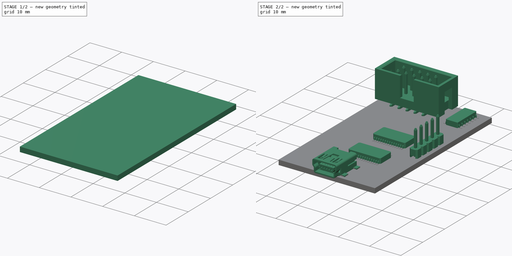
[diagram: build sequence overview — one tinted view per stage of 2, left to right]
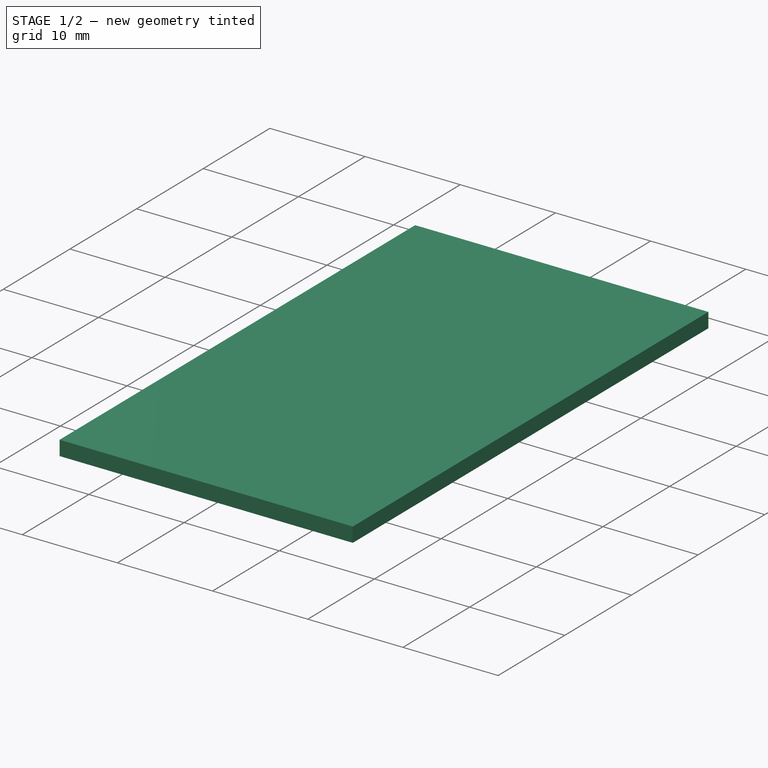
[diagram: stage 1 of 2 — iso view after this stage's code; geometry added in this stage tinted green]
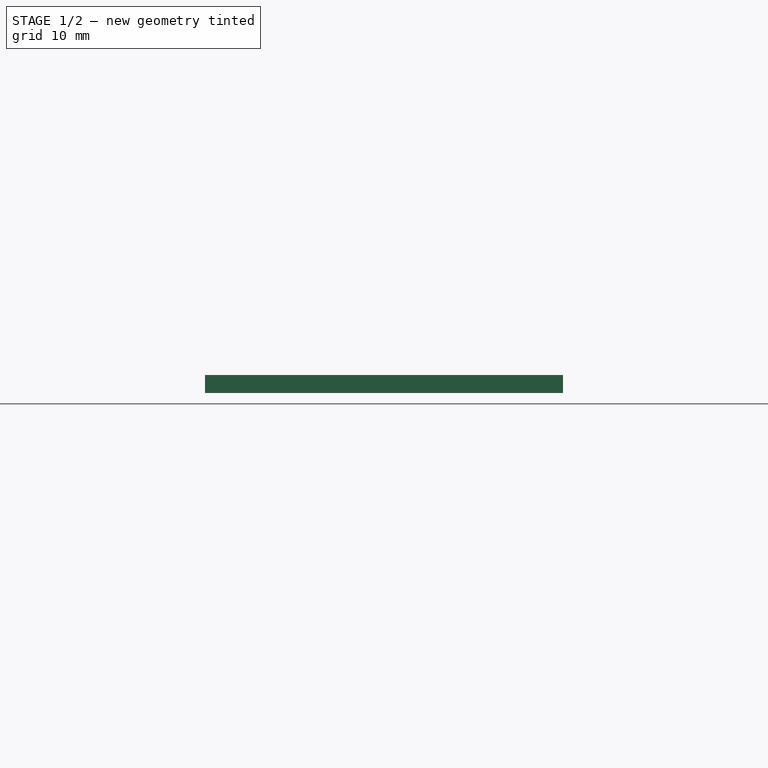
[diagram: stage 1 of 2 — front view after this stage's code; geometry added in this stage tinted green]
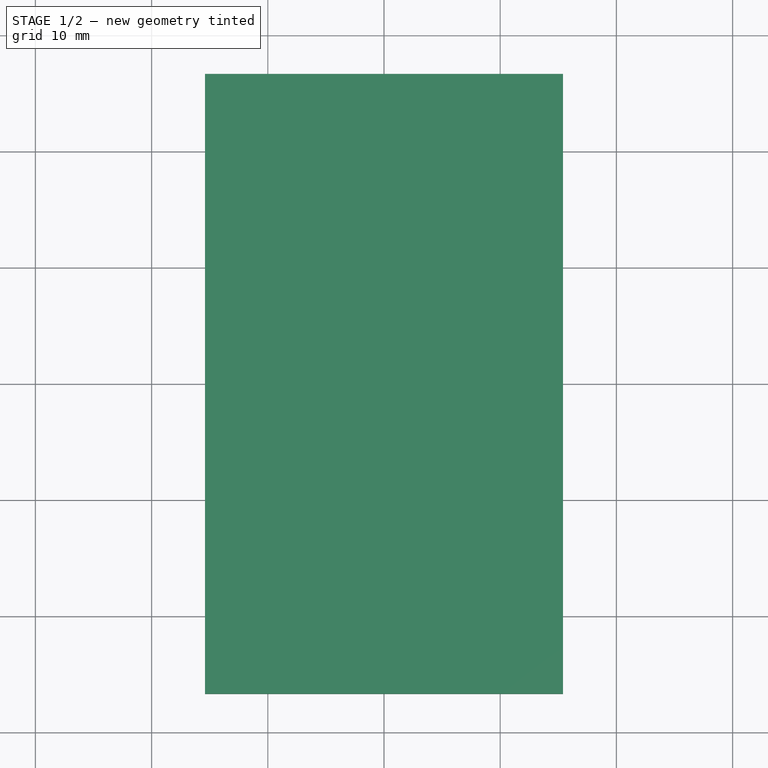
[diagram: stage 1 of 2 — top view after this stage's code; geometry added in this stage tinted green]
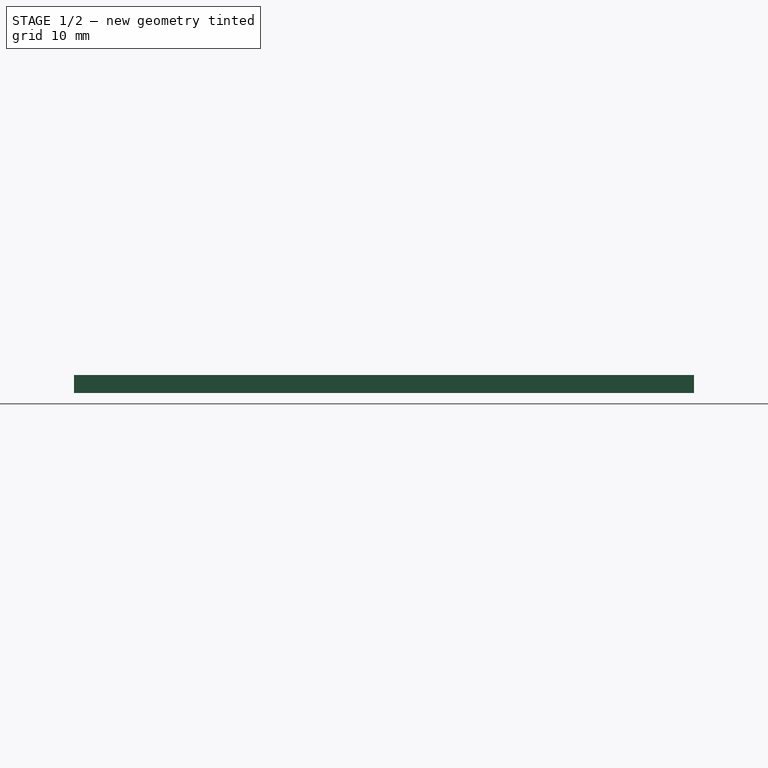
[diagram: stage 1 of 2 — right view after this stage's code; geometry added in this stage tinted green]
FCSTD DOCUMENT  (FreeCAD 0.16R5262 (Git))
Label: bus_pirate
License: CreativeCommons Attribution-ShareAlike
LicenseURL: http://creativecommons.org/licenses/by-sa/4.0/
objects: Part::Feature×7, Sketcher::SketchObject×1, PartDesign::Pad×1, Part::MultiFuse×1
note: 11 computed .brp shape members not serialized (recipe doc carries the construction recipe); baked Part::Feature solids carry a one-line shape summary decoded from their .brp

FEATURE [Sketcher::SketchObject] Sketch
  sketch-geometry (4):
    g0: LineSegment StartX=-15.4 StartY=26.675 StartZ=0 EndX=15.4 EndY=26.675 EndZ=0
    g1: LineSegment StartX=15.4 StartY=26.675 StartZ=0 EndX=15.4 EndY=-26.675 EndZ=0
    g2: LineSegment StartX=15.4 StartY=-26.675 StartZ=0 EndX=-15.4 EndY=-26.675 EndZ=0
    g3: LineSegment StartX=-15.4 StartY=-26.675 StartZ=0 EndX=-15.4 EndY=26.675 EndZ=0
  constraints (11):
    c: Coincident(g0,g1)
    c: Coincident(g1,g2)
    c: Coincident(g2,g3)
    c: Coincident(g3,g0)
    c: Horizontal(g0)
    c: Horizontal(g2)
    c: Vertical(g1)
    c: Vertical(g3)
    c: Symmetric(g0,g1,g-1)
    c: DistanceX(g0) = 30.8
    c: DistanceY(g1) = -53.35
FEATURE [PartDesign::Pad] Pad  label="board"
  Length = 1.55
  Length2 = 100
  Reversed = true
  Sketch = -> Sketch
  Type = 0
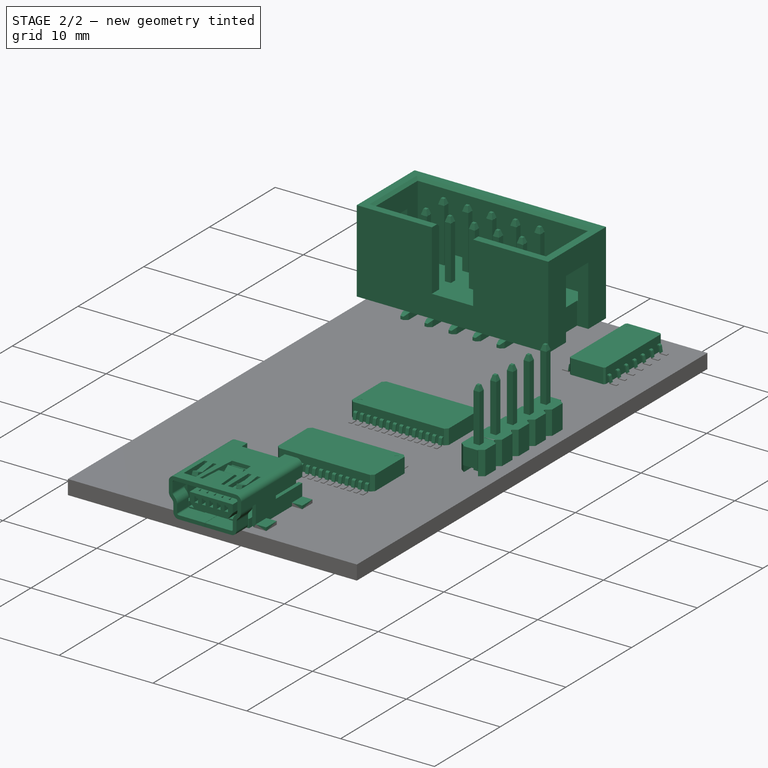
[diagram: stage 2 of 2 — iso view after this stage's code; geometry added in this stage tinted green]
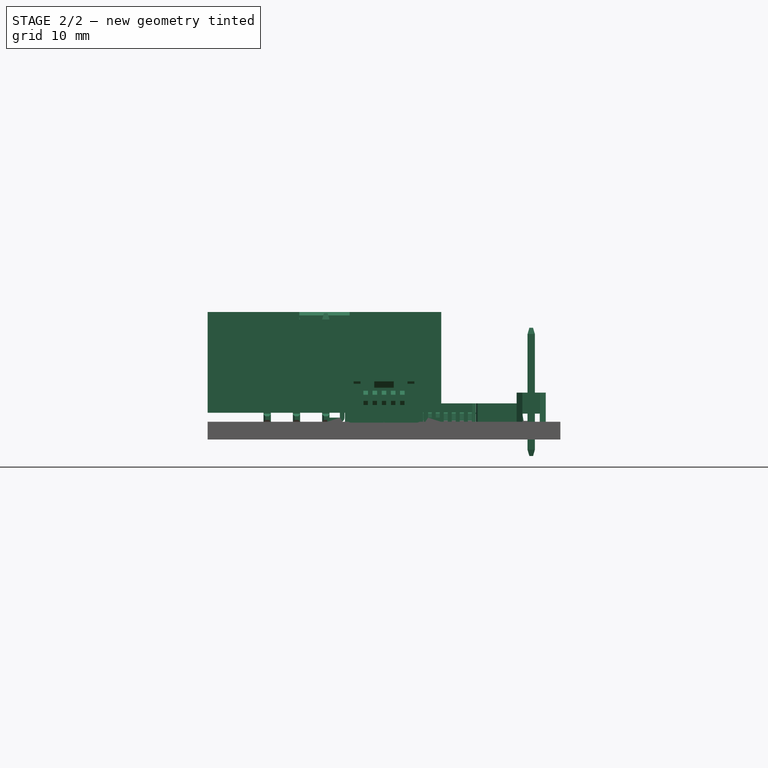
[diagram: stage 2 of 2 — front view after this stage's code; geometry added in this stage tinted green]
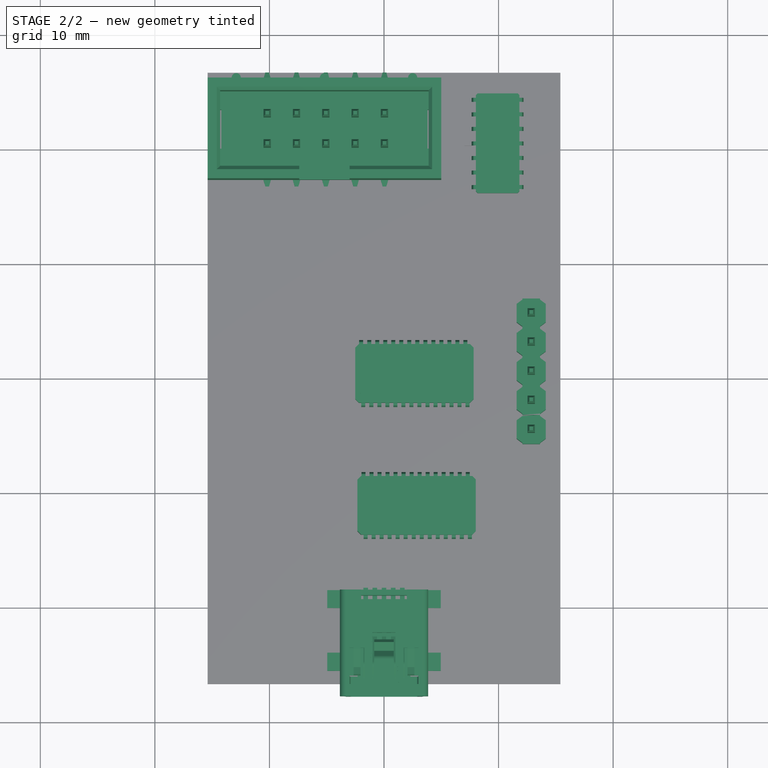
[diagram: stage 2 of 2 — top view after this stage's code; geometry added in this stage tinted green]
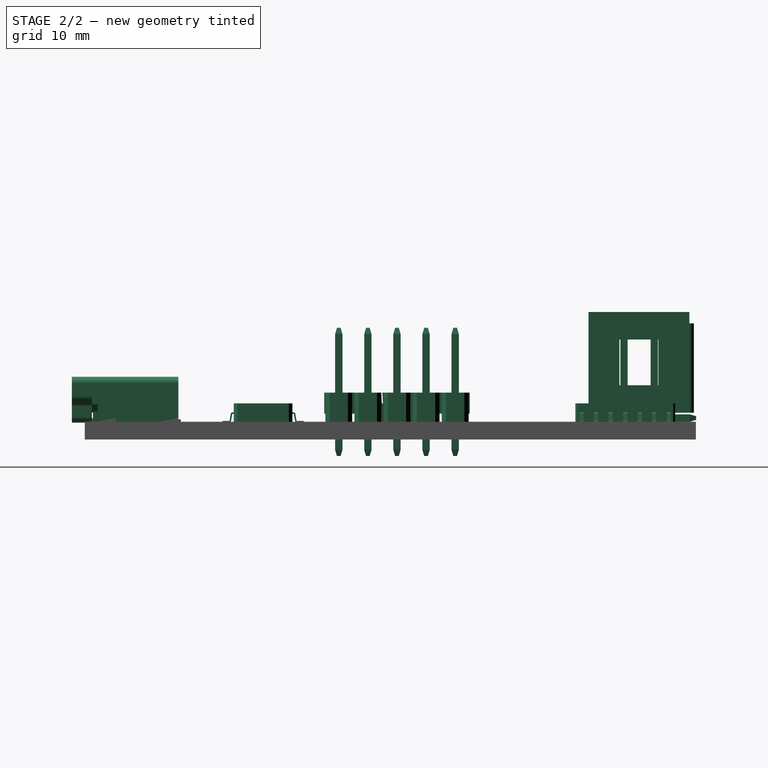
[diagram: stage 2 of 2 — right view after this stage's code; geometry added in this stage tinted green]
FEATURE [Part::Feature] Shape
  Placement = pos=(0,-19,0) rot=(1,0,0;1.5708rad)
  shape: bbox 9.9 x 9.511 x 5.02 mm, 477 faces, 7 solids (baked)
FEATURE [Part::Feature] Fusion002001  label="2x5-pin-box-headers-male-rigth-angle-short"
  Placement = pos=(-5.2,21.7,0.78) rot=(1,0,0;1.5708rad)
  shape: bbox 20.4 x 9.952 x 9.58 mm, 273 faces, 11 solids (baked)
FEATURE [Part::Feature] Fusion001  label="FT232RL"
  Placement = pos=(9,-14.7,0) rot=(0,0,1;1.5708rad)
  shape: bbox 10.33 x 7.11 x 1.655 mm, 376 faces (baked)
FEATURE [Part::Feature] Fusion002002  label="PIC24J64GA002-SS "
  Placement = pos=(-3.5,4,0) rot=(0,0,-1;1.5708rad)
  shape: bbox 10.33 x 7.11 x 1.655 mm, 376 faces (baked)
FEATURE [Part::Feature] Fusion002003  label="CD4066D"
  Placement = pos=(13,26,0) rot=(0,0,1;3.14159rad)
  shape: bbox 5.802 x 8.7 x 1.655 mm, 194 faces (baked)
FEATURE [Part::Feature] Fusion001001  label="1x5-male-pin-header"
  Placement = pos=(12.85,-4.5,0) rot=(0,0,1;1.5708rad)
  shape: bbox 2.54 x 12.7 x 11.2 mm, 200 faces, 5 solids (baked)
FEATURE [Part::MultiFuse] Fusion  label="bus"
  Shapes = -> [Pad,Shape,Fusion002001,Fusion001,Fusion002002,Fusion002003,Fusion001001]
FEATURE [Part::Feature] Fusion002004  label="bus-pirate"
  shape: bbox 30.8 x 54.5 x 12.58 mm, 1709 faces, 11 solids (baked)
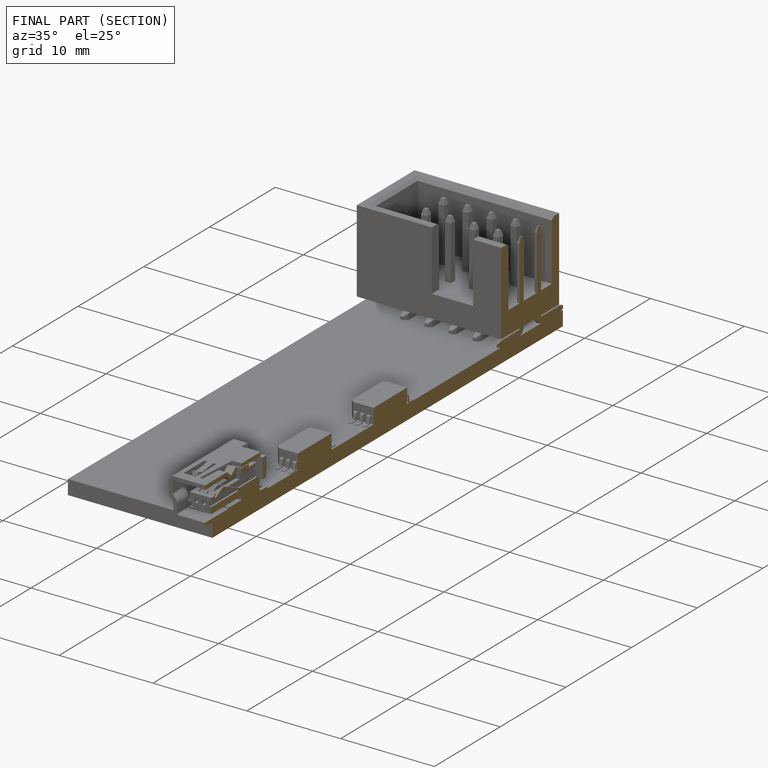
[diagram: finished part — half-section view (interior)]
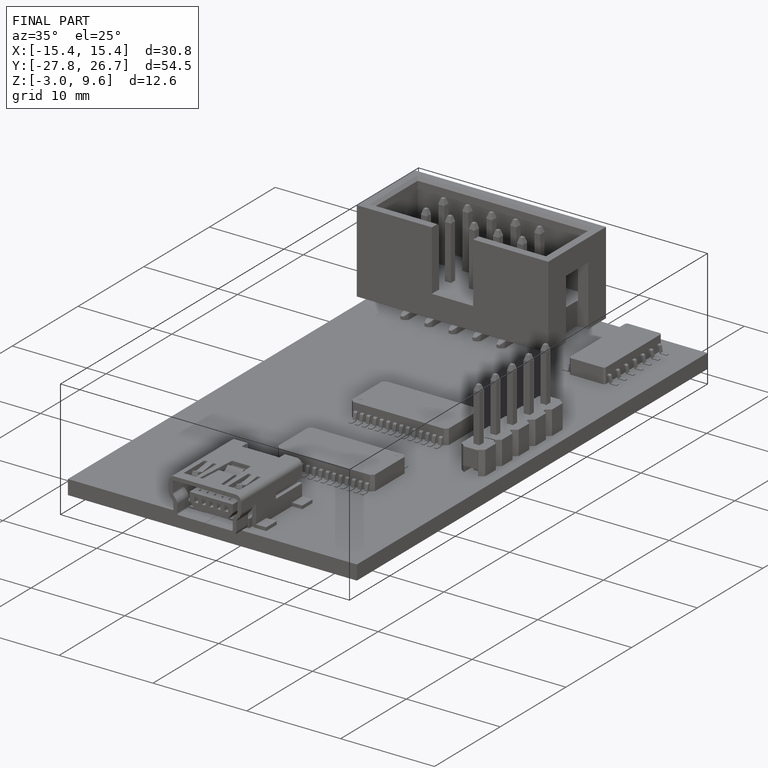
[diagram: finished part — iso view with bounding-box wireframe]
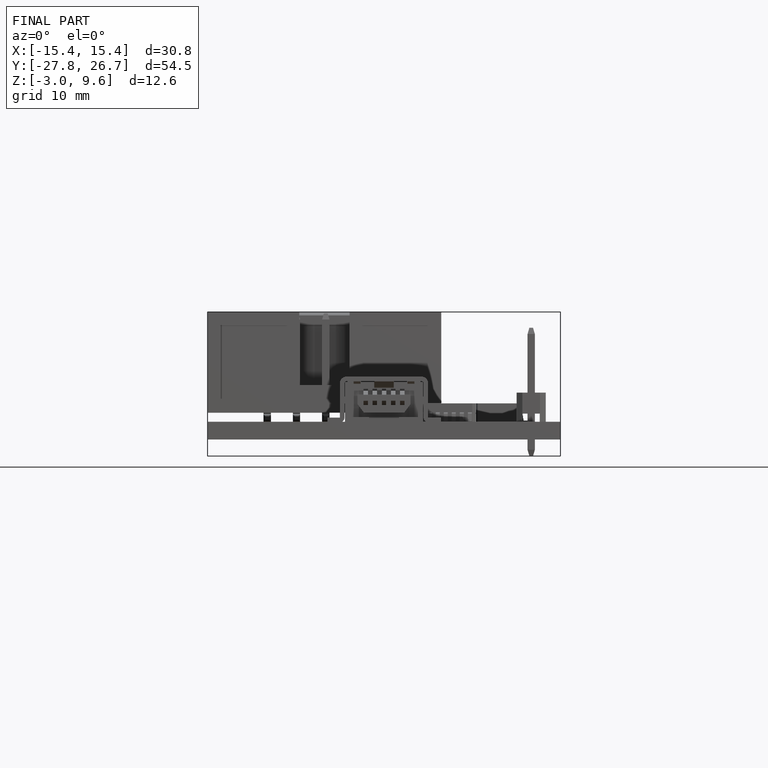
[diagram: finished part — front view with bounding-box wireframe]
